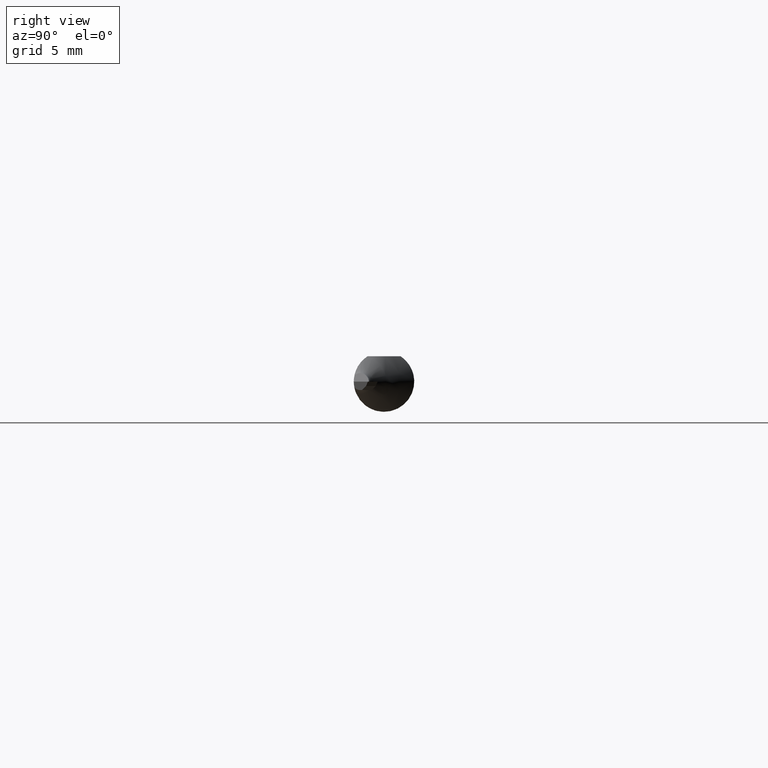
[diagram: clean part render]
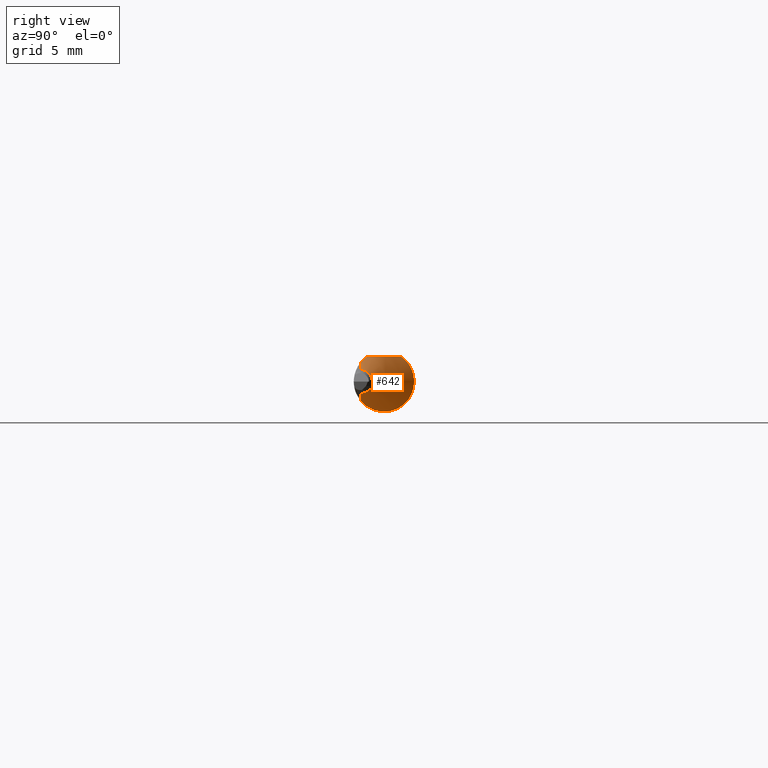
[diagram: same view with one face highlighted and labeled with its STEP entity id]
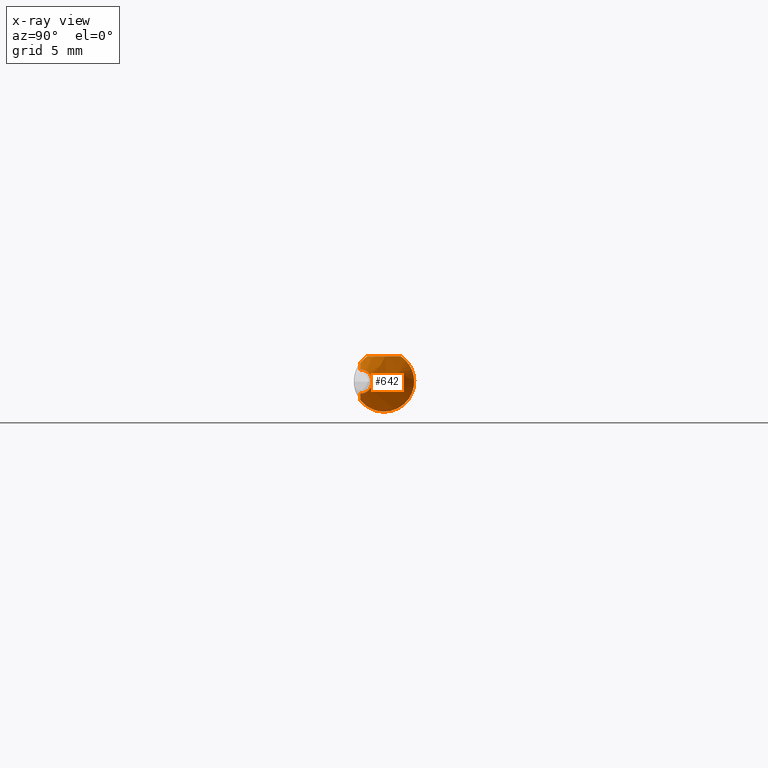
[diagram: x-ray of the same camera — body ghosted, the highlighted face saturated]
A machine part, right view. The second image highlights one B-rep face of the part: STEP entity #642.
The next image is the same camera in x-ray: the body ghosted, the highlighted face saturated — about 0% of this face is hidden behind the body in this view.
In plain terms, the highlighted conical surface has half-angle 45 deg.
Its self-contained STEP definition (entity closure, byte-faithful):
#6 = VECTOR ( 'NONE', #661, 39.37007874015748854 ) ;
#43 = CARTESIAN_POINT ( 'NONE',  ( 1.275358580142834652, -0.02771937408487656906, -0.05598997618229406559 ) ) ;
#49 = CARTESIAN_POINT ( 'NONE',  ( 1.226797206081656988, 0.05592648175052387927, 0.02799002807874791804 ) ) ;
#56 = CARTESIAN_POINT ( 'NONE',  ( 1.243886696044967710, 0.02097139061819394690, -0.05887746032603118074 ) ) ;
#65 = DIRECTION ( 'NONE',  ( 0.000000000000000000, 0.000000000000000000, 1.000000000000000000 ) ) ;
#72 = LINE ( 'NONE', #500, #559 ) ;
#117 = CONICAL_SURFACE ( 'NONE', #866, 0.1111999999999999933, 0.7853981633974428389 ) ;
#121 = CARTESIAN_POINT ( 'NONE',  ( 1.290272464145333586, -0.04369941679369290788, -0.04464469873827295321 ) ) ;
#125 = CARTESIAN_POINT ( 'NONE',  ( 1.266747118912807668, -0.01641413537815324813, -0.06028500946651924042 ) ) ;
#136 = CARTESIAN_POINT ( 'NONE',  ( 1.235731661812906168, 0.03691102635646652946, -0.05046266542797422233 ) ) ;
#138 = VERTEX_POINT ( 'NONE', #623 ) ;
#151 = CARTESIAN_POINT ( 'NONE',  ( 1.237253451677763127, 0.03386738844375224849, 0.05234999999999997294 ) ) ;
#152 = VERTEX_POINT ( 'NONE', #383 ) ;
#153 = CARTESIAN_POINT ( 'NONE',  ( 1.280692836829395720, -0.03386738844375222768, 0.05234999999999997294 ) ) ;
#166 = CIRCLE ( 'NONE', #530, 0.02482233047033638104 ) ;
#174 = ORIENTED_EDGE ( 'NONE', *, *, #914, .T. ) ;
#184 = ORIENTED_EDGE ( 'NONE', *, *, #401, .T. ) ;
#203 = CARTESIAN_POINT ( 'NONE',  ( 1.284238538065767488, -0.03778417318145798481, -0.04975082321463265844 ) ) ;
#222 = CARTESIAN_POINT ( 'NONE',  ( 1.265940729725909986, -0.003415696435723348211, 0.05234999999999997294 ) ) ;
#228 = VERTEX_POINT ( 'NONE', #699 ) ;
#266 = CARTESIAN_POINT ( 'NONE',  ( 1.258604930610921491, -0.004327236796243898870, -0.06233527284537540569 ) ) ;
#275 = B_SPLINE_CURVE_WITH_KNOTS ( 'NONE', 3,
 ( #336, #698, #121, #203, #406, #43, #630, #125, #930, #266, #484, #790, #561, #56, #941, #846, #136, #936, #716, #416, #854, #553, #639, #409, #488, #783, #704, #420, #49, #341, #346, #710 ),
 .UNSPECIFIED., .F., .F.,
 ( 4, 2, 2, 2, 2, 2, 2, 2, 2, 2, 2, 2, 2, 2, 2, 4 ),
 ( 0.0005794281082984382471, 0.0009548221528387602301, 0.001330216197379082213, 0.001705610241919404196, 0.002081004286459726179, 0.002456398331000047945, 0.002831792375540370145, 0.003207186420080692345, 0.003582580464621014545, 0.003957974509161336744, 0.004333368553701655475, 0.004708762598241975073, 0.005084156642782293803, 0.005459550687322614268, 0.005834944731862932998, 0.006585732820943570459 ),
 .UNSPECIFIED. ) ;
#336 = CARTESIAN_POINT ( 'NONE',  ( 1.296399338642361565, -0.04885000000000000453, -0.03874532229831106206 ) ) ;
#341 = CARTESIAN_POINT ( 'NONE',  ( 1.230229168581589816, 0.04839488953273463068, 0.04049962096708457221 ) ) ;
#343 = EDGE_CURVE ( 'NONE', #228, #613, #879, .T. ) ;
#346 = CARTESIAN_POINT ( 'NONE',  ( 1.233383615634219943, 0.04162220789005000032, 0.04733308533908438254 ) ) ;
#360 = CARTESIAN_POINT ( 'NONE',  ( 1.296399338642361565, -0.04885000000000000453, 0.03874532229831106206 ) ) ;
#363 = DIRECTION ( 'NONE',  ( -1.000000000000000000, -0.000000000000000000, -0.000000000000000000 ) ) ;
#366 = B_SPLINE_CURVE_WITH_KNOTS ( 'NONE', 3,
 ( #583, #737, #881, #648, #222, #658, #511, #151 ),
 .UNSPECIFIED., .F., .F.,
 ( 4, 2, 2, 4 ),
 ( 0.001782749369705201271, 0.002291746602842737422, 0.002800743835980273357, 0.003818738302255333950 ),
 .UNSPECIFIED. ) ;
#381 = ORIENTED_EDGE ( 'NONE', *, *, #619, .F. ) ;
#383 = CARTESIAN_POINT ( 'NONE',  ( 1.310322330470336416, -0.04885000000000003229, -0.02482233047033638104 ) ) ;
#401 = EDGE_CURVE ( 'NONE', #152, #859, #649, .T. ) ;
#406 = CARTESIAN_POINT ( 'NONE',  ( 1.281262241805919189, -0.03458795510178934440, -0.05202801643756744393 ) ) ;
#409 = CARTESIAN_POINT ( 'NONE',  ( 1.223972065761688155, 0.06228624462976680570, -0.005677941240280068129 ) ) ;
#416 = CARTESIAN_POINT ( 'NONE',  ( 1.228161114752954086, 0.05291627376059242216, -0.03331670432072829369 ) ) ;
#420 = CARTESIAN_POINT ( 'NONE',  ( 1.225898378997372085, 0.05793721673796965038, 0.02356019257413410894 ) ) ;
#437 = CARTESIAN_POINT ( 'NONE',  ( 1.223944660940671891, -0.04885000000000001841, 0.000000000000000000 ) ) ;
#439 = CARTESIAN_POINT ( 'NONE',  ( 1.285897383745186584, -0.03966876148853260009, 0.04859685091853504363 ) ) ;
#470 = CARTESIAN_POINT ( 'NONE',  ( 1.296399338642361565, -0.04885000000000000453, -0.03874532229831106206 ) ) ;
#484 = CARTESIAN_POINT ( 'NONE',  ( 1.255943135934091348, -7.546988640704478863E-05, -0.06249433022256211528 ) ) ;
#488 = CARTESIAN_POINT ( 'NONE',  ( 1.223860078364205517, 0.06254238248359815511, -0.0006170433720268707432 ) ) ;
#496 = EDGE_LOOP ( 'NONE', ( #733, #184, #174, #638, #886, #381 ) ) ;
#500 = CARTESIAN_POINT ( 'NONE',  ( 1.223944660940671891, -0.04885000000000001841, 0.1111999999999999933 ) ) ;
#511 = CARTESIAN_POINT ( 'NONE',  ( 1.245943991857031419, 0.02358264054126600964, 0.05234999999999997294 ) ) ;
#530 = AXIS2_PLACEMENT_3D ( 'NONE', #896, #875, #65 ) ;
#553 = CARTESIAN_POINT ( 'NONE',  ( 1.225324714678055038, 0.05922021216607439853, -0.02011771535692728763 ) ) ;
#559 = VECTOR ( 'NONE', #954, 39.37007874015748854 ) ;
#561 = CARTESIAN_POINT ( 'NONE',  ( 1.248476377301064311, 0.01261289760007555487, -0.06121494403357938957 ) ) ;
#583 = CARTESIAN_POINT ( 'NONE',  ( 1.280692836829395720, -0.03386738844375222768, 0.05234999999999997294 ) ) ;
#586 = EDGE_CURVE ( 'NONE', #891, #152, #166, .T. ) ;
#613 = VERTEX_POINT ( 'NONE', #666 ) ;
#619 = EDGE_CURVE ( 'NONE', #891, #613, #72, .T. ) ;
#623 = CARTESIAN_POINT ( 'NONE',  ( 1.237253451677763127, 0.03386738844375224849, 0.05234999999999997294 ) ) ;
#630 = CARTESIAN_POINT ( 'NONE',  ( 1.272418020745532896, -0.02402511148135728566, -0.05767582010599425074 ) ) ;
#631 = EDGE_CURVE ( 'NONE', #228, #138, #366, .T. ) ;
#638 = ORIENTED_EDGE ( 'NONE', *, *, #631, .F. ) ;
#639 = CARTESIAN_POINT ( 'NONE',  ( 1.224706418543551445, 0.06062052779184415319, -0.01539372914681419804 ) ) ;
#642 = ADVANCED_FACE ( 'NONE', ( #732 ), #117, .T. ) ;
#643 = CARTESIAN_POINT ( 'NONE',  ( 1.223944660940671891, -0.04885000000000000453, -0.1111999999999999933 ) ) ;
#648 = CARTESIAN_POINT ( 'NONE',  ( 1.269590123793895797, -0.009075655482202498597, 0.05235000000000000070 ) ) ;
#649 = LINE ( 'NONE', #643, #6 ) ;
#658 = CARTESIAN_POINT ( 'NONE',  ( 1.254403652722808404, 0.01312616709034404236, 0.05234999999999996600 ) ) ;
#661 = DIRECTION ( 'NONE',  ( -0.7071067811865513475, 8.659560562354884787E-17, -0.7071067811865435759 ) ) ;
#666 = CARTESIAN_POINT ( 'NONE',  ( 1.296399338642361565, -0.04885000000000000453, 0.03874532229831106206 ) ) ;
#698 = CARTESIAN_POINT ( 'NONE',  ( 1.293350853450839111, -0.04643209741520624295, -0.04179380748983375221 ) ) ;
#699 = CARTESIAN_POINT ( 'NONE',  ( 1.280692836829395720, -0.03386738844375222768, 0.05234999999999997294 ) ) ;
#704 = CARTESIAN_POINT ( 'NONE',  ( 1.224573172394210152, 0.06091883353372612442, 0.01416684433326350669 ) ) ;
#710 = CARTESIAN_POINT ( 'NONE',  ( 1.237253451677763127, 0.03386738844375224849, 0.05234999999999997294 ) ) ;
#716 = CARTESIAN_POINT ( 'NONE',  ( 1.230779670453844510, 0.04725170962974347549, -0.04095620529989571490 ) ) ;
#732 = FACE_OUTER_BOUND ( 'NONE', #496, .T. ) ;
#733 = ORIENTED_EDGE ( 'NONE', *, *, #586, .T. ) ;
#734 = CARTESIAN_POINT ( 'NONE',  ( 1.291112191683478683, -0.04465650536416684163, 0.04403246925719388194 ) ) ;
#737 = CARTESIAN_POINT ( 'NONE',  ( 1.278887346580172224, -0.02730563269667979007, 0.05234999999999997988 ) ) ;
#783 = CARTESIAN_POINT ( 'NONE',  ( 1.224160415314311301, 0.06185911183911504962, 0.009240164052845939793 ) ) ;
#790 = CARTESIAN_POINT ( 'NONE',  ( 1.250879551721306937, 0.008396659779750135014, -0.06192772489130794061 ) ) ;
#812 = DIRECTION ( 'NONE',  ( 0.000000000000000000, 0.000000000000000000, 1.000000000000000000 ) ) ;
#846 = CARTESIAN_POINT ( 'NONE',  ( 1.237593964321843210, 0.03314363369441372664, -0.05300355781810979494 ) ) ;
#854 = CARTESIAN_POINT ( 'NONE',  ( 1.227069270207275631, 0.05532941876845135637, -0.02916181439695679153 ) ) ;
#858 = CARTESIAN_POINT ( 'NONE',  ( 1.310322330470336416, -0.04885000000000003229, 0.02482233047033638104 ) ) ;
#859 = VERTEX_POINT ( 'NONE', #470 ) ;
#866 = AXIS2_PLACEMENT_3D ( 'NONE', #437, #363, #812 ) ;
#875 = DIRECTION ( 'NONE',  ( -1.000000000000000000, -0.000000000000000000, -0.000000000000000000 ) ) ;
#879 = B_SPLINE_CURVE_WITH_KNOTS ( 'NONE', 3,
 ( #153, #439, #734, #360 ),
 .UNSPECIFIED., .F., .F.,
 ( 4, 4 ),
 ( 4.548525278138623775E-07, 0.0006507702106821684936 ),
 .UNSPECIFIED. ) ;
#881 = CARTESIAN_POINT ( 'NONE',  ( 1.276064074130062398, -0.02100907905298084188, 0.05234999999999997294 ) ) ;
#886 = ORIENTED_EDGE ( 'NONE', *, *, #343, .T. ) ;
#891 = VERTEX_POINT ( 'NONE', #858 ) ;
#896 = CARTESIAN_POINT ( 'NONE',  ( 1.310322330470336416, -0.04885000000000001841, 0.000000000000000000 ) ) ;
#914 = EDGE_CURVE ( 'NONE', #859, #138, #275, .T. ) ;
#930 = CARTESIAN_POINT ( 'NONE',  ( 1.263992454696816647, -0.01247149335287424214, -0.06122804155407373522 ) ) ;
#936 = CARTESIAN_POINT ( 'NONE',  ( 1.232330414659089657, 0.04395119875025053913, -0.04446567886808212855 ) ) ;
#941 = CARTESIAN_POINT ( 'NONE',  ( 1.241673375492364562, 0.02516761314723100010, -0.05722297479438229195 ) ) ;
#954 = DIRECTION ( 'NONE',  ( -0.7071067811865513475, 0.000000000000000000, 0.7071067811865435759 ) ) ;